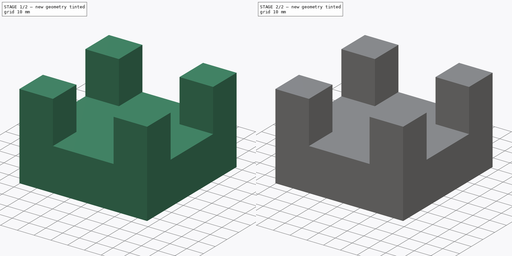
[diagram: build sequence overview — one tinted view per stage of 2, left to right]
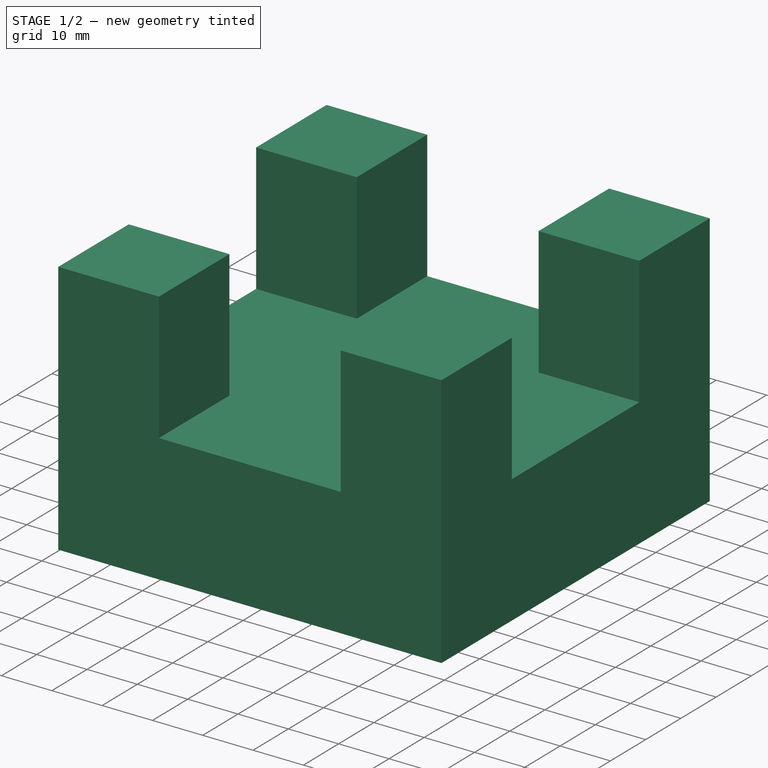
[diagram: stage 1 of 2 — iso view after this stage's code; geometry added in this stage tinted green]
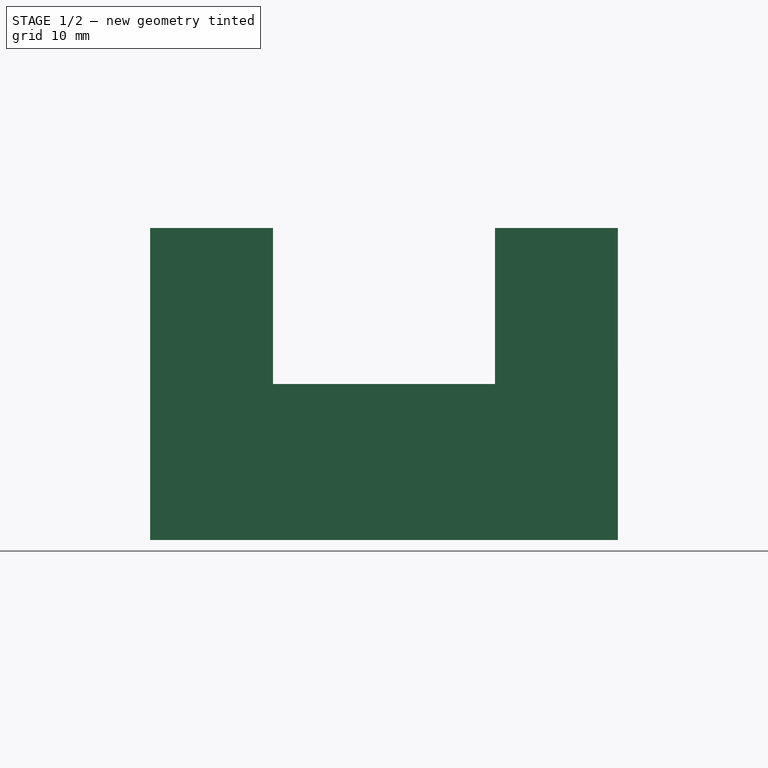
[diagram: stage 1 of 2 — front view after this stage's code; geometry added in this stage tinted green]
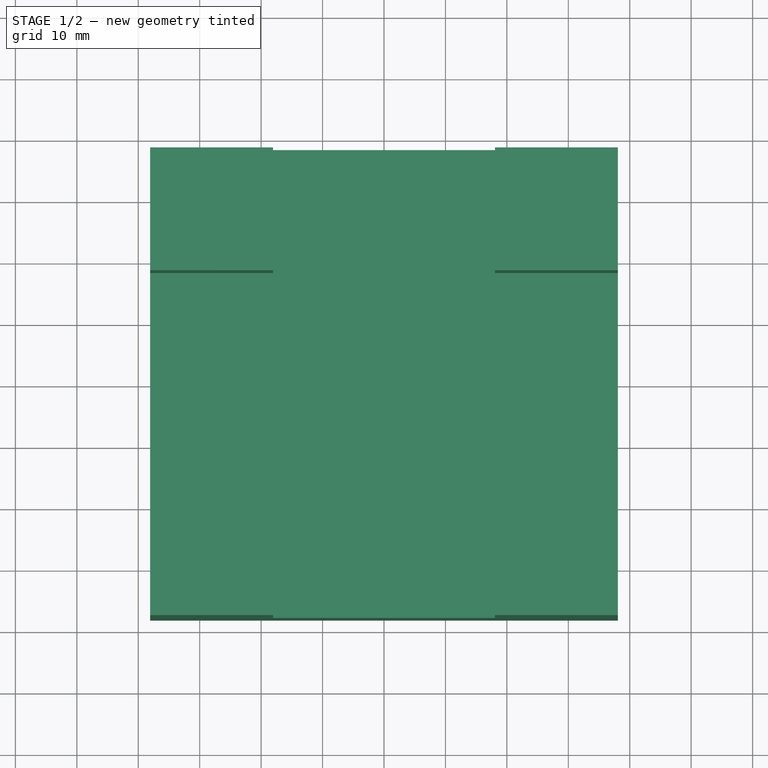
[diagram: stage 1 of 2 — top view after this stage's code; geometry added in this stage tinted green]
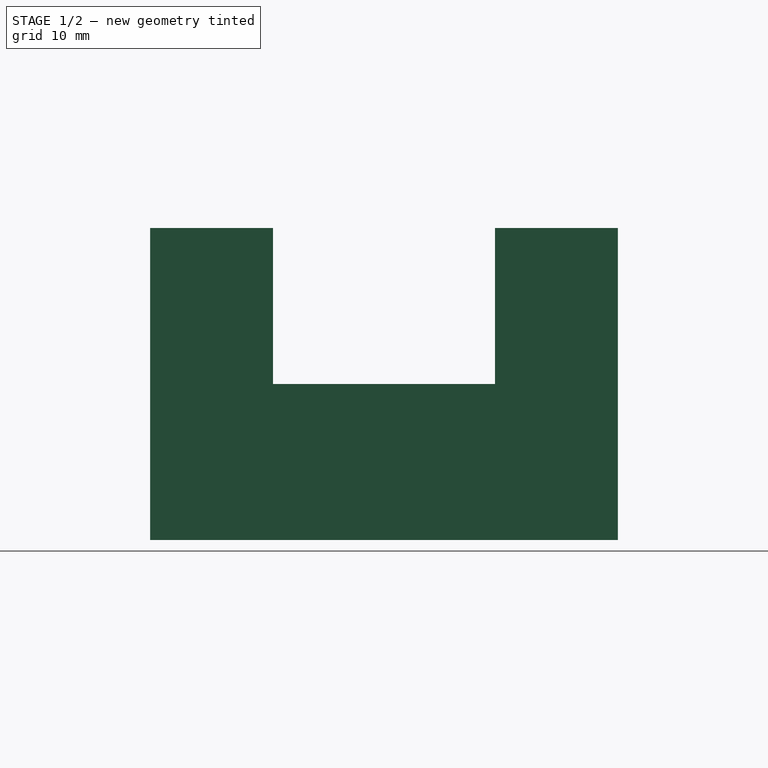
[diagram: stage 1 of 2 — right view after this stage's code; geometry added in this stage tinted green]
FCSTD DOCUMENT  (FreeCAD 0.20R29603 (Git))
Label: Tank_Stand_No_Label
License: All rights reserved
LicenseURL: http://en.wikipedia.org/wiki/All_rights_reserved
objects: Sketcher::SketchObject×4, PartDesign::Pad×2, PartDesign::Pocket×2, PartDesign::Body×1
note: 13 computed .brp shape members not serialized (recipe doc carries the construction recipe); baked Part::Feature solids carry a one-line shape summary decoded from their .brp

FEATURE [Sketcher::SketchObject] Sketch  label="Base"
  FullyConstrained = true
  MapMode = 5
  Support = -> [XY_Plane]
  sketch-geometry (9):
    g0: LineSegment StartX=-38.0711 StartY=38.0711 StartZ=0 EndX=38.0711 EndY=38.0711 EndZ=0
    g1: LineSegment StartX=38.0711 StartY=38.0711 StartZ=0 EndX=38.0711 EndY=-38.0711 EndZ=0
    g2: LineSegment StartX=38.0711 StartY=-38.0711 StartZ=0 EndX=-38.0711 EndY=-38.0711 EndZ=0
    g3: LineSegment StartX=-38.0711 StartY=-38.0711 StartZ=0 EndX=-38.0711 EndY=38.0711 EndZ=0
    g4: LineSegment StartX=-31 StartY=31 StartZ=0 EndX=31 EndY=31 EndZ=0
    g5: LineSegment StartX=31 StartY=31 StartZ=0 EndX=31 EndY=-31 EndZ=0
    g6: LineSegment StartX=31 StartY=-31 StartZ=0 EndX=-31 EndY=-31 EndZ=0
    g7: LineSegment StartX=-31 StartY=-31 StartZ=0 EndX=-31 EndY=31 EndZ=0
    g8: LineSegment StartX=-31 StartY=31 StartZ=0 EndX=-38.0711 EndY=38.0711 EndZ=0
  constraints (24):
    c: Coincident(g0,g1)
    c: Coincident(g1,g2)
    c: Coincident(g2,g3)
    c: Coincident(g3,g0)
    c: Horizontal(g0)
    c: Horizontal(g2)
    c: Vertical(g1)
    c: Vertical(g3)
    c: Symmetric(g0,g1,g-1)
    c: Coincident(g4,g5)
    c: Coincident(g5,g6)
    c: Coincident(g6,g7)
    c: Coincident(g7,g4)
    c: Horizontal(g4)
    c: Horizontal(g6)
    c: Vertical(g5)
    c: Vertical(g7)
    c: Symmetric(g6,g4,g-1)
    c: DistanceY(g5,g5) = 62
    c: DistanceX(g4,g4) = 62
    c: Coincident(g8,g4)
    c: Coincident(g8,g0)
    c: Distance(g8) = 10
    c: Angle(g8,g0) = 0.785398
FEATURE [PartDesign::Pad] Pad  label="Base001"
  Direction = (0,0,1)
  Length = 25.4
  Length2 = 10
  Profile = -> Sketch
  ReferenceAxis = -> Sketch [N_Axis]
  Type = 0
FEATURE [Sketcher::SketchObject] Sketch001  label="Legs"
  ExternalGeometry = -> [Pad]
  FullyConstrained = true
  MapMode = 5
  Placement = pos=(0,0,25.4) rot=(0,0,1;0rad)
  Support = -> [Pad]
  sketch-geometry (16):
    g0: LineSegment StartX=-38.0711 StartY=38.0711 StartZ=0 EndX=-18.0711 EndY=38.0711 EndZ=0
    g1: LineSegment StartX=-18.0711 StartY=38.0711 StartZ=0 EndX=-18.0711 EndY=18.0711 EndZ=0
    g2: LineSegment StartX=-18.0711 StartY=18.0711 StartZ=0 EndX=-38.0711 EndY=18.0711 EndZ=0
    g3: LineSegment StartX=-38.0711 StartY=18.0711 StartZ=0 EndX=-38.0711 EndY=38.0711 EndZ=0
    g4: LineSegment StartX=38.0711 StartY=38.0711 StartZ=0 EndX=18.0711 EndY=38.0711 EndZ=0
    g5: LineSegment StartX=18.0711 StartY=38.0711 StartZ=0 EndX=18.0711 EndY=18.0711 EndZ=0
    g6: LineSegment StartX=18.0711 StartY=18.0711 StartZ=0 EndX=38.0711 EndY=18.0711 EndZ=0
    g7: LineSegment StartX=38.0711 StartY=18.0711 StartZ=0 EndX=38.0711 EndY=38.0711 EndZ=0
    g8: LineSegment StartX=38.0711 StartY=-38.0711 StartZ=0 EndX=18.0711 EndY=-38.0711 EndZ=0
    g9: LineSegment StartX=18.0711 StartY=-38.0711 StartZ=0 EndX=18.0711 EndY=-18.0711 EndZ=0
    g10: LineSegment StartX=18.0711 StartY=-18.0711 StartZ=0 EndX=38.0711 EndY=-18.0711 EndZ=0
    g11: LineSegment StartX=38.0711 StartY=-18.0711 StartZ=0 EndX=38.0711 EndY=-38.0711 EndZ=0
    g12: LineSegment StartX=-38.0711 StartY=-38.0711 StartZ=0 EndX=-18.0711 EndY=-38.0711 EndZ=0
    g13: LineSegment StartX=-18.0711 StartY=-38.0711 StartZ=0 EndX=-18.0711 EndY=-18.0711 EndZ=0
    g14: LineSegment StartX=-18.0711 StartY=-18.0711 StartZ=0 EndX=-38.0711 EndY=-18.0711 EndZ=0
    g15: LineSegment StartX=-38.0711 StartY=-18.0711 StartZ=0 EndX=-38.0711 EndY=-38.0711 EndZ=0
  constraints (44):
    c: Coincident(g0,g1)
    c: Coincident(g1,g2)
    c: Coincident(g2,g3)
    c: Coincident(g3,g0)
    c: Horizontal(g0)
    c: Horizontal(g2)
    c: Vertical(g1)
    c: Vertical(g3)
    c: Coincident(g0,g-4)
    c: Coincident(g4,g5)
    c: Coincident(g5,g6)
    c: Coincident(g6,g7)
    c: Coincident(g7,g4)
    c: Horizontal(g4)
    c: Horizontal(g6)
    c: Vertical(g5)
    c: Vertical(g7)
    c: Coincident(g4,g-5)
    c: Coincident(g8,g9)
    c: Coincident(g9,g10)
    c: Coincident(g10,g11)
    c: Coincident(g11,g8)
    c: Horizontal(g8)
    c: Horizontal(g10)
    c: Vertical(g9)
    c: Vertical(g11)
    c: Coincident(g8,g-6)
    c: Coincident(g12,g13)
    c: Coincident(g13,g14)
    c: Coincident(g14,g15)
    c: Coincident(g15,g12)
    c: Horizontal(g12)
    c: Horizontal(g14)
    c: Vertical(g13)
    c: Vertical(g15)
    c: Coincident(g12,g-6)
    c: Equal(g9,g10)
    c: Equal(g10,g6)
    c: Equal(g6,g5)
    c: Equal(g5,g2)
    c: Equal(g2,g14)
    c: Equal(g14,g13)
    c: Equal(g2,g1)
    c: DistanceX(g10,g10) = 20
FEATURE [PartDesign::Pad] Pad001  label="Legs001"
  BaseFeature = -> Pad
  Direction = (0,0,1)
  Length = 25.4
  Length2 = 10
  Profile = -> Sketch001
  ReferenceAxis = -> Sketch001 [N_Axis]
  Type = 0
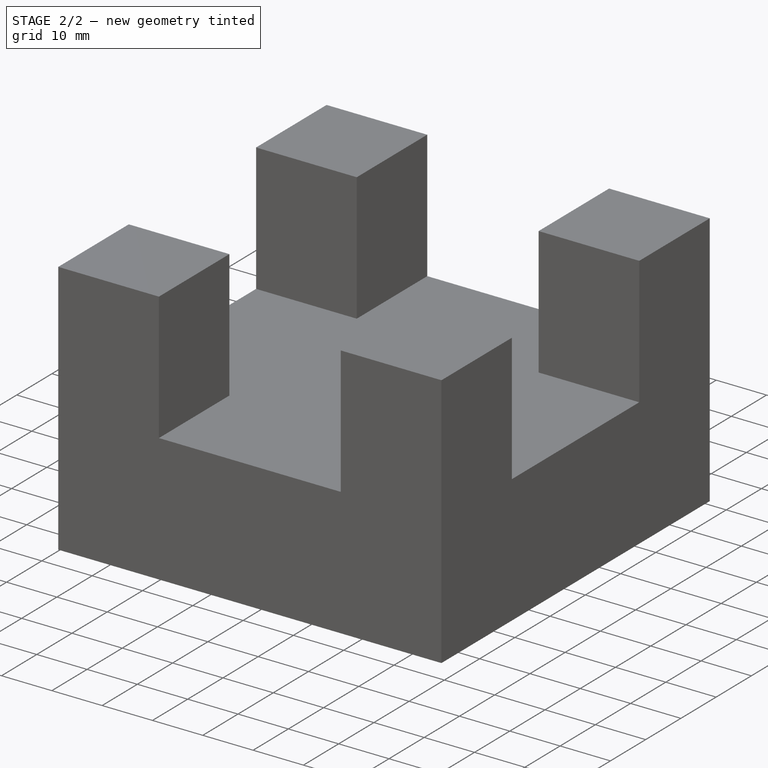
[diagram: stage 2 of 2 — iso view after this stage's code; geometry added in this stage tinted green]
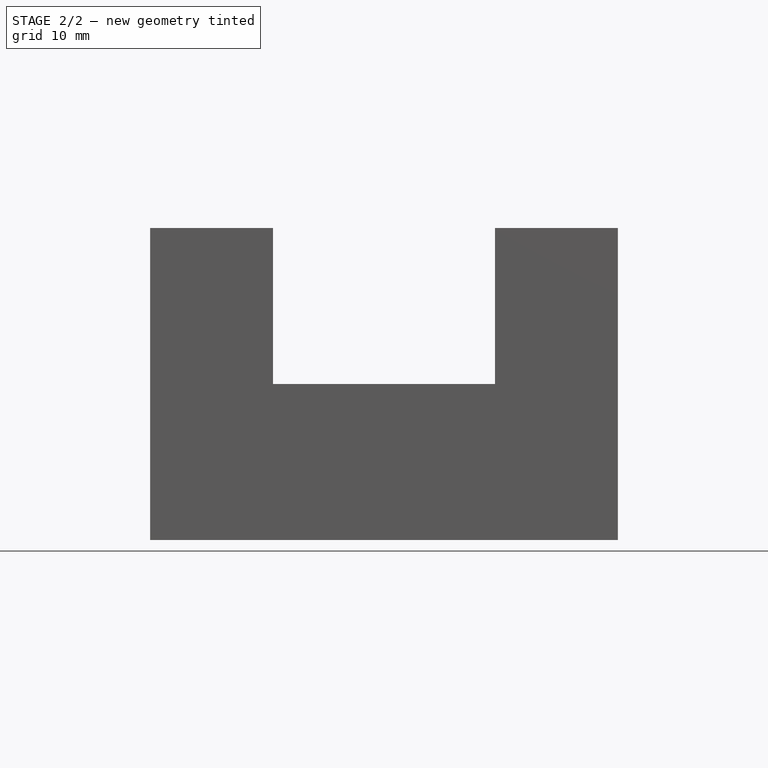
[diagram: stage 2 of 2 — front view after this stage's code; geometry added in this stage tinted green]
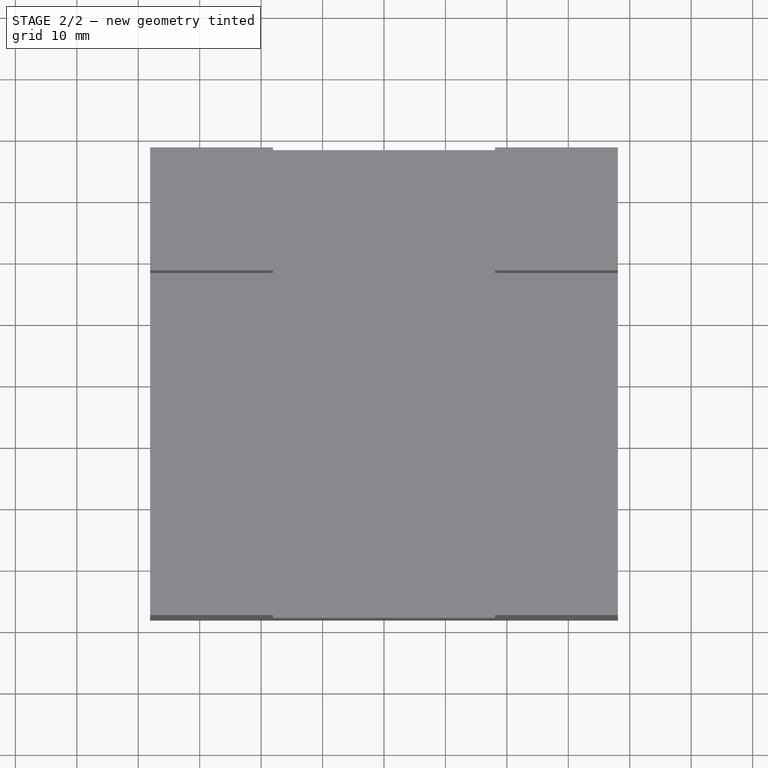
[diagram: stage 2 of 2 — top view after this stage's code; geometry added in this stage tinted green]
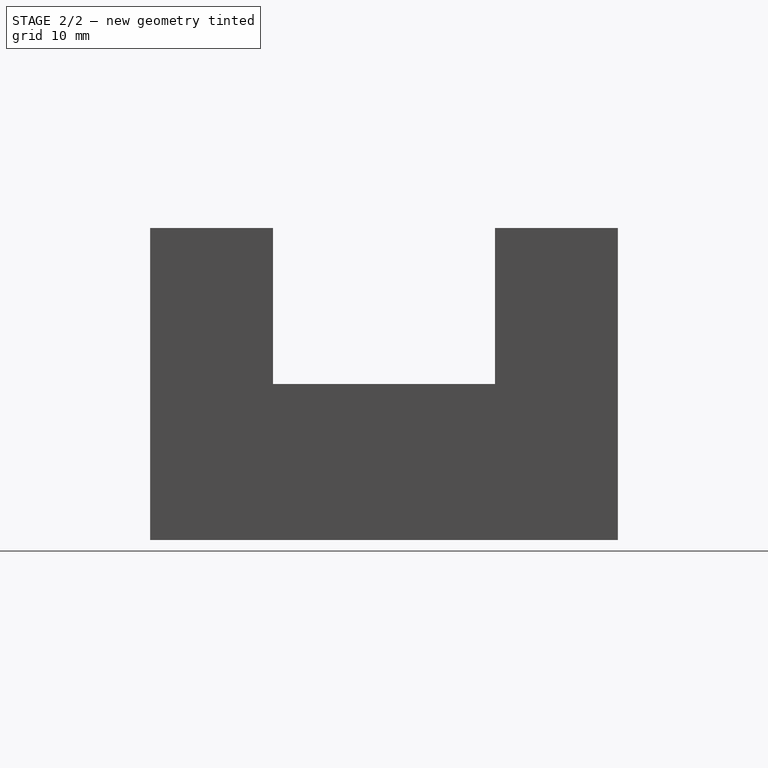
[diagram: stage 2 of 2 — right view after this stage's code; geometry added in this stage tinted green]
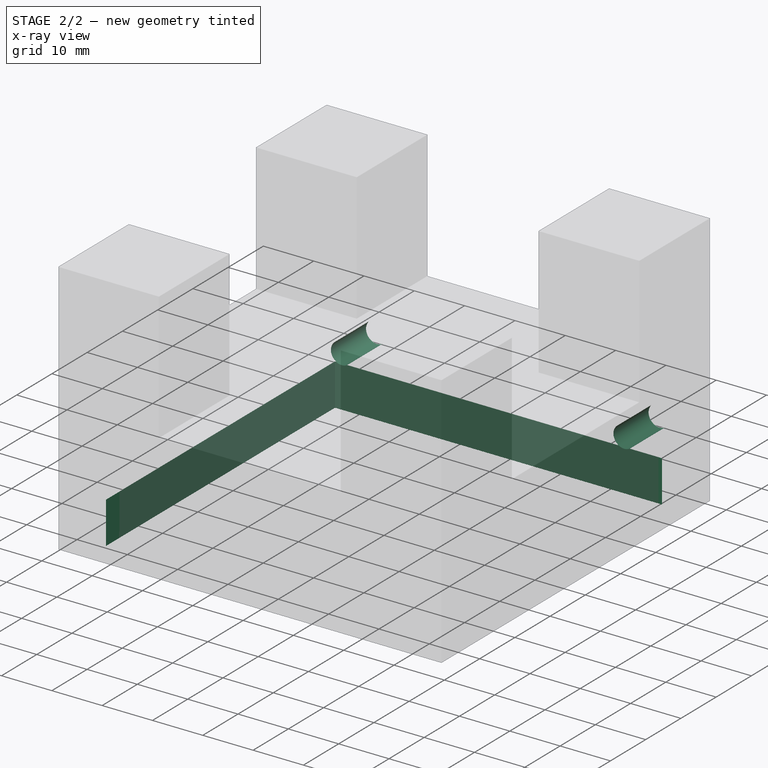
[diagram: stage 2 of 2 — x-ray composite at the iso view; earlier geometry ghosted, this stage's added geometry solid]
FEATURE [Sketcher::SketchObject] Sketch002  label="Pump_Pocket"
  ExternalGeometry = -> [Pad001]
  FullyConstrained = true
  MapMode = 5
  Placement = pos=(0,0,0) rot=(1,0,0;3.14159rad)
  Support = -> [Pad001]
  sketch-geometry (6):
    g0: LineSegment StartX=-32.5 StartY=32.5 StartZ=0 EndX=32.5 EndY=32.5 EndZ=0
    g1: LineSegment StartX=32.5 StartY=32.5 StartZ=0 EndX=32.5 EndY=-32.5 EndZ=0
    g2: LineSegment StartX=32.5 StartY=-32.5 StartZ=0 EndX=-32.5 EndY=-32.5 EndZ=0
    g3: LineSegment StartX=-32.5 StartY=-32.5 StartZ=0 EndX=-32.5 EndY=32.5 EndZ=0
    g4: LineSegment StartX=-32.5 StartY=32.5 StartZ=0 EndX=-38.0711 EndY=32.5 EndZ=0
    g5: LineSegment StartX=-32.5 StartY=32.5 StartZ=0 EndX=-32.5 EndY=38.0711 EndZ=0
  constraints (17):
    c: Coincident(g0,g1)
    c: Coincident(g1,g2)
    c: Coincident(g2,g3)
    c: Coincident(g3,g0)
    c: Horizontal(g0)
    c: Horizontal(g2)
    c: Vertical(g1)
    c: Vertical(g3)
    c: Symmetric(g0,g1,g-1)
    c: Coincident(g4,g0)
    c: PointOnObject(g4,g-3)
    c: Horizontal(g4)
    c: Coincident(g5,g0)
    c: PointOnObject(g5,g-4)
    c: Vertical(g5)
    c: Equal(g4,g5)
    c: DistanceX(g0,g0) = 65
FEATURE [PartDesign::Pocket] Pocket  label="Pump_Pocket001"
  BaseFeature = -> Pad001
  Direction = (0,0,1)
  Length = 8.35
  Length2 = 5
  Profile = -> Sketch002
  ReferenceAxis = -> Sketch002 [N_Axis]
  Type = 0
FEATURE [Sketcher::SketchObject] Sketch003  label="m5_mounting_holes"
  ExternalGeometry = -> [Pocket]
  FullyConstrained = true
  MapMode = 5
  Placement = pos=(0,38.0711,0) rot=(0,0.707107,0.707107;3.14159rad)
  Support = -> [Pocket]
  sketch-geometry (10):
    g0: LineSegment StartX=-38.0711 StartY=25.4 StartZ=0 EndX=-18.0711 EndY=25.4 EndZ=0
    g1: LineSegment StartX=-18.0711 StartY=25.4 StartZ=0 EndX=-18.0711 EndY=0 EndZ=0
    g2: LineSegment StartX=-18.0711 StartY=0 StartZ=0 EndX=-38.0711 EndY=0 EndZ=0
    g3: LineSegment StartX=-38.0711 StartY=0 StartZ=0 EndX=-38.0711 EndY=25.4 EndZ=0
    g4: LineSegment StartX=38.0711 StartY=25.4 StartZ=0 EndX=18.0711 EndY=25.4 EndZ=0
    g5: LineSegment StartX=18.0711 StartY=25.4 StartZ=0 EndX=18.0711 EndY=0 EndZ=0
    g6: LineSegment StartX=18.0711 StartY=0 StartZ=0 EndX=38.0711 EndY=0 EndZ=0
    g7: LineSegment StartX=38.0711 StartY=0 StartZ=0 EndX=38.0711 EndY=25.4 EndZ=0
    g8: Circle CenterX=-28.0711 CenterY=12.7 CenterZ=0 NormalX=0 NormalY=0 NormalZ=1 AngleXU=0 Radius=2.1463
    g9: Circle CenterX=28.0711 CenterY=12.7 CenterZ=0 NormalX=0 NormalY=0 NormalZ=1 AngleXU=0 Radius=2.1463
  constraints (24):
    c: Coincident(g0,g1)
    c: Coincident(g1,g2)
    c: Coincident(g2,g3)
    c: Coincident(g3,g0)
    c: Horizontal(g2)
    c: Vertical(g1)
    c: Vertical(g3)
    c: PointOnObject(g1,g-1)
    c: Coincident(g4,g5)
    c: Coincident(g5,g6)
    c: Coincident(g6,g7)
    c: Coincident(g7,g4)
    c: Horizontal(g6)
    c: Vertical(g5)
    c: Vertical(g7)
    c: PointOnObject(g5,g-1)
    c: Equal(g9,g8)
    c: Symmetric(g2,g0,g8)
    c: Symmetric(g4,g6,g9)
    c: Diameter(g9) = 4.2926
    c: Coincident(g0,g-4)
    c: Coincident(g0,g-3)
    c: Coincident(g4,g-5)
    c: Coincident(g4,g-6)
FEATURE [PartDesign::Pocket] Pocket001
  BaseFeature = -> Pocket
  Direction = (0,-1,2e-16)
  Length = 10
  Length2 = 5
  Profile = -> Sketch003
  ReferenceAxis = -> Sketch003 [N_Axis]
  Type = 0
FEATURE [PartDesign::Body] Body  label="Tank_Stand"
  Group = -> [Sketch,Pad,Sketch001,Pad001,Sketch002,Pocket,Sketch003,Pocket001]
  Origin = -> Origin
  Tip = -> Pocket001
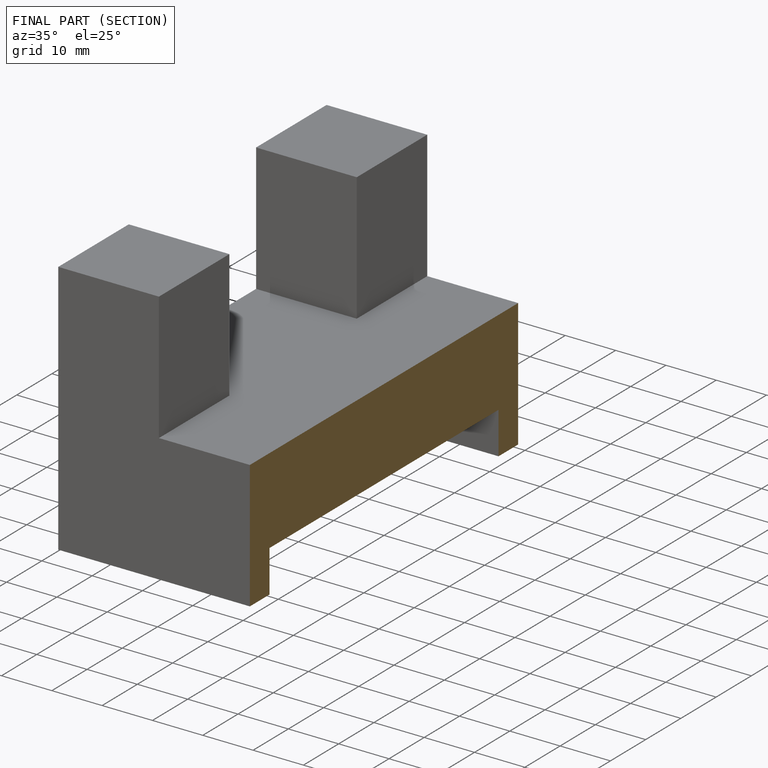
[diagram: finished part — half-section view (interior)]
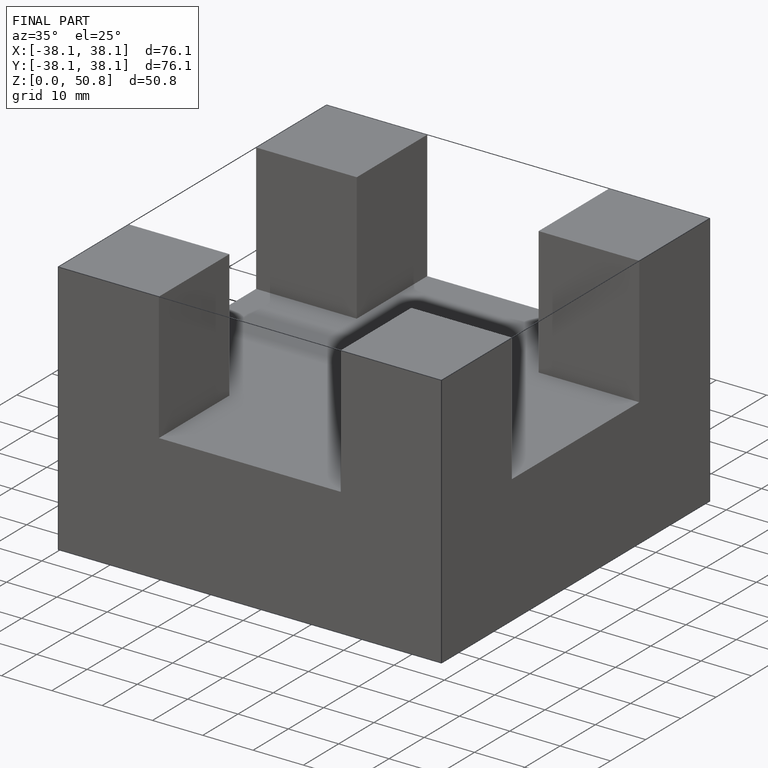
[diagram: finished part — iso view with bounding-box wireframe]
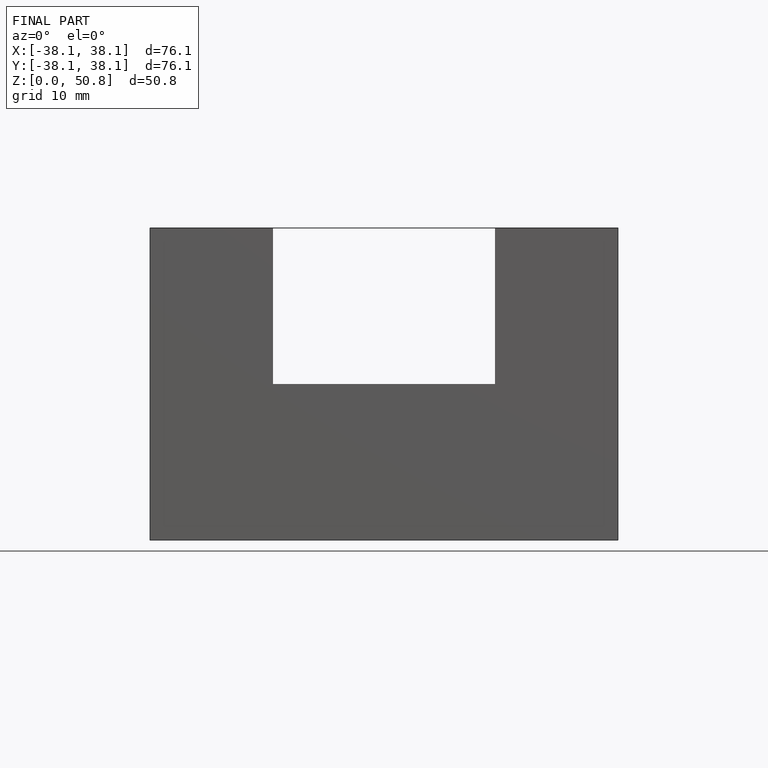
[diagram: finished part — front view with bounding-box wireframe]
